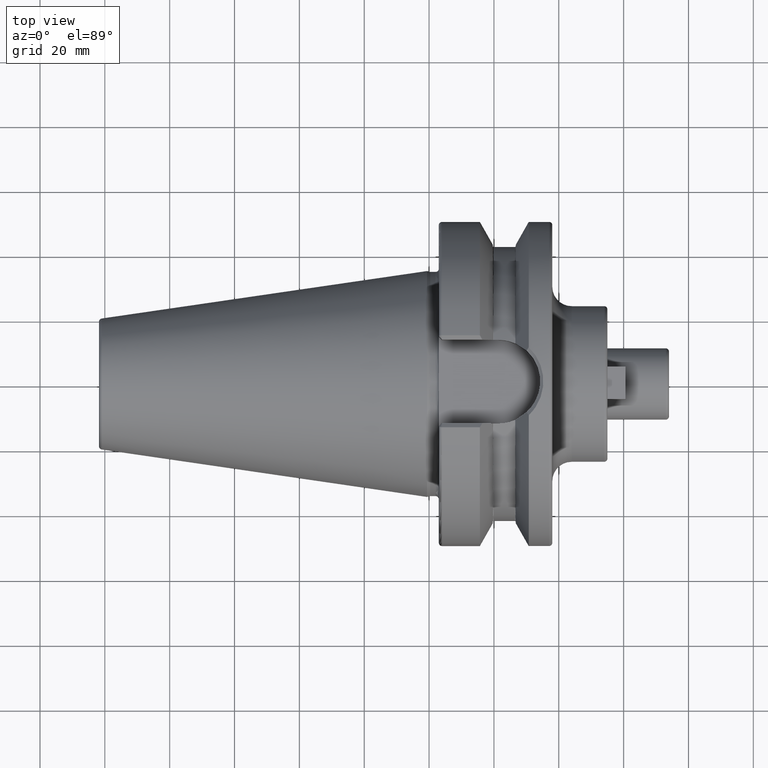
[diagram: clean part render]
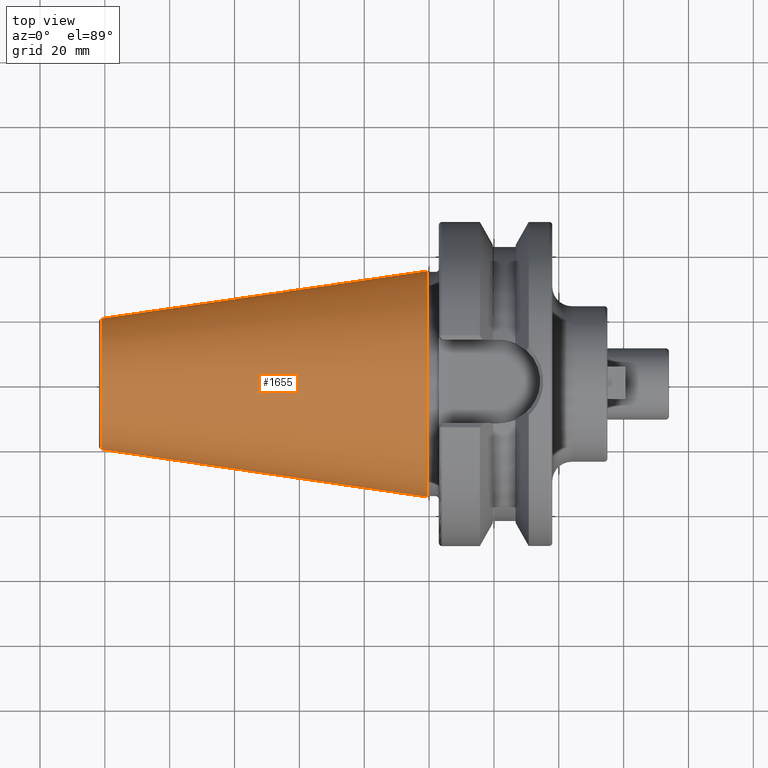
[diagram: same view with one face highlighted and labeled with its STEP entity id]
A machine part, top view. The second image highlights one B-rep face of the part: STEP entity #1655.
In plain terms, the highlighted conical surface has half-angle 8.298 deg.
Its self-contained STEP definition (entity closure, byte-faithful):
#37=CARTESIAN_POINT('',(-1.009443186692E2,0.E0,0.E0));
#38=DIRECTION('',(1.E0,0.E0,0.E0));
#39=DIRECTION('',(0.E0,1.E0,0.E0));
#40=AXIS2_PLACEMENT_3D('',#37,#38,#39);
#42=CARTESIAN_POINT('',(-6.191906162850E-1,0.E0,0.E0));
#43=DIRECTION('',(1.E0,0.E0,0.E0));
#44=DIRECTION('',(0.E0,1.E0,0.E0));
#45=AXIS2_PLACEMENT_3D('',#42,#43,#44);
#47=DIRECTION('',(-9.895312636440E-1,-1.443186691705E-1,0.E0));
#48=VECTOR('',#47,1.013865167670E2);
#49=CARTESIAN_POINT('',(-6.191906162849E-1,3.483469384295E1,0.E0));
#50=LINE('',#49,#48);
#51=DIRECTION('',(-9.895312636440E-1,1.443186691705E-1,0.E0));
#52=VECTOR('',#51,1.013865167670E2);
#53=CARTESIAN_POINT('',(-6.191906162849E-1,-3.483469384295E1,0.E0));
#54=LINE('',#53,#52);
#1302=CARTESIAN_POINT('',(-1.009443186692E2,2.020272667130E1,0.E0));
#1304=VERTEX_POINT('',#1302);
#1306=CARTESIAN_POINT('',(-1.009443186692E2,-2.020272667130E1,0.E0));
#1308=VERTEX_POINT('',#1306);
#1521=CARTESIAN_POINT('',(-6.191906162849E-1,3.483469384295E1,0.E0));
#1522=VERTEX_POINT('',#1521);
#1523=CARTESIAN_POINT('',(-6.191906162849E-1,-3.483469384295E1,0.E0));
#1524=VERTEX_POINT('',#1523);
#1641=CARTESIAN_POINT('',(-5.078175464273E1,0.E0,0.E0));
#1642=DIRECTION('',(1.E0,0.E0,0.E0));
#1643=DIRECTION('',(0.E0,-1.E0,0.E0));
#1644=AXIS2_PLACEMENT_3D('',#1641,#1642,#1643);
#1645=CONICAL_SURFACE('',#1644,2.751871025712E1,8.297826828206E0);
#1647=ORIENTED_EDGE('',*,*,#1646,.F.);
#1649=ORIENTED_EDGE('',*,*,#1648,.T.);
#1651=ORIENTED_EDGE('',*,*,#1650,.T.);
#1652=ORIENTED_EDGE('',*,*,#1634,.F.);
#1653=EDGE_LOOP('',(#1647,#1649,#1651,#1652));
#1654=FACE_OUTER_BOUND('',#1653,.F.);
#1655=ADVANCED_FACE('',(#1654),#1645,.T.);
#41=CIRCLE('',#40,2.020272667130E1);
#46=CIRCLE('',#45,3.483469384295E1);
#1634=EDGE_CURVE('',#1304,#1308,#41,.T.);
#1646=EDGE_CURVE('',#1522,#1304,#50,.T.);
#1648=EDGE_CURVE('',#1522,#1524,#46,.T.);
#1650=EDGE_CURVE('',#1524,#1308,#54,.T.);